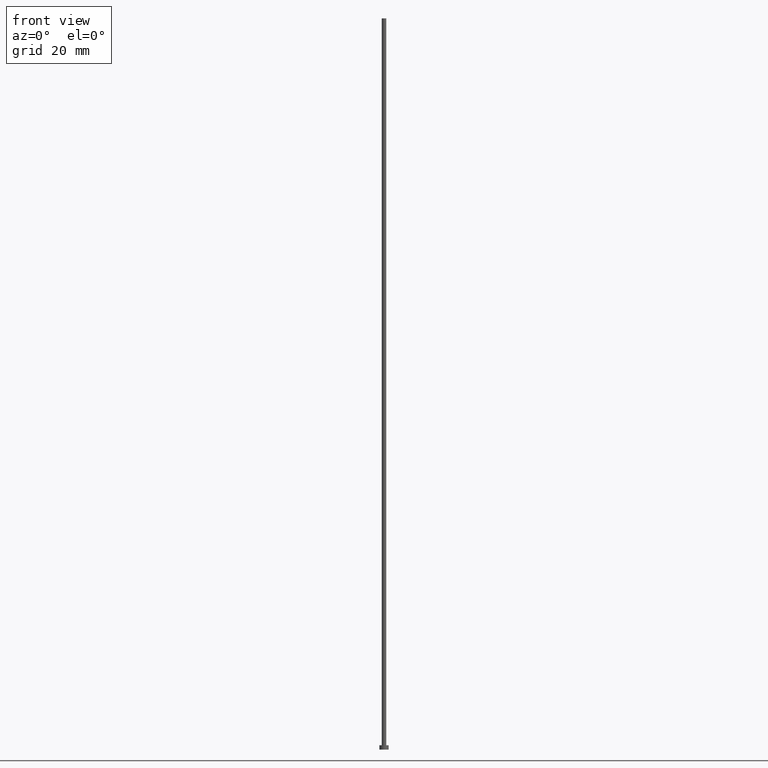
[diagram: clean part render]
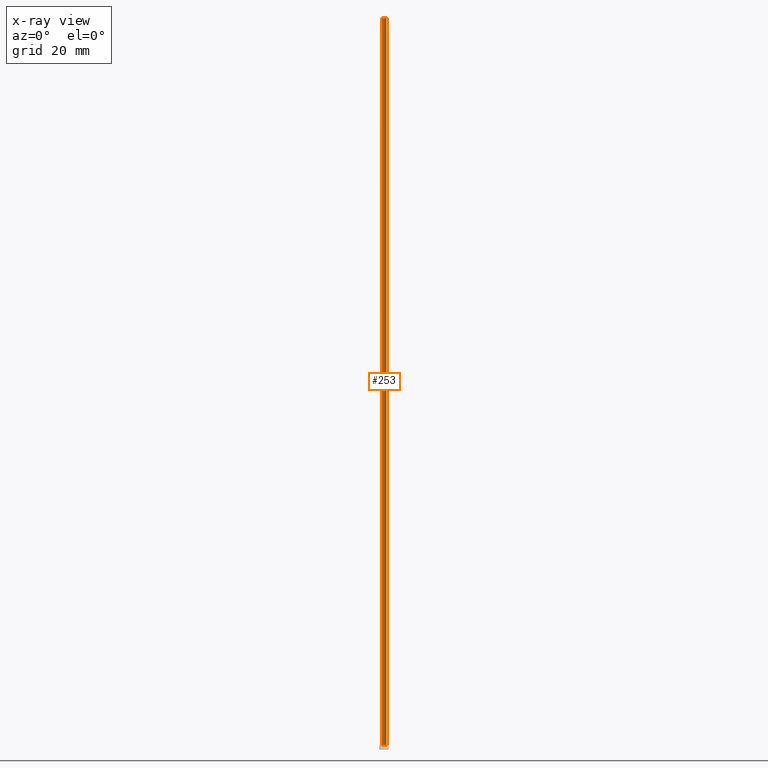
[diagram: x-ray — body ghosted, one internal face saturated and labeled with its STEP entity id]
A machine part, front view, then the same camera in x-ray: the body is ghosted and one INTERNAL B-rep face — a face not visible from any outside direction — is saturated and labeled: STEP entity #253.
In plain terms, the highlighted cylindrical surface (edge-blend (fillet) strip) has radius 0.6 mm, axis along (-0, -0, -1).
Its self-contained STEP definition (entity closure, byte-faithful):
#4 = EDGE_CURVE ( 'NONE', #101, #65, #147, .T. ) ;
#14 = DIRECTION ( 'NONE',  ( -0.000000000000000000, -0.000000000000000000, -1.000000000000000000 ) ) ;
#16 = CARTESIAN_POINT ( 'NONE',  ( 0.5999999999999999778, 7.347880794884117764E-17, 1.199999999999999956 ) ) ;
#17 = DIRECTION ( 'NONE',  ( -1.000000000000000000, 0.000000000000000000, 0.000000000000000000 ) ) ;
#19 = VECTOR ( 'NONE', #40, 1000.000000000000000 ) ;
#23 = EDGE_CURVE ( 'NONE', #83, #128, #242, .T. ) ;
#30 = CARTESIAN_POINT ( 'NONE',  ( -0.5999999999999999778, 0.000000000000000000, 1.199999999999999956 ) ) ;
#39 = AXIS2_PLACEMENT_3D ( 'NONE', #108, #124, #53 ) ;
#40 = DIRECTION ( 'NONE',  ( -0.000000000000000000, -0.000000000000000000, -1.000000000000000000 ) ) ;
#53 = DIRECTION ( 'NONE',  ( 1.000000000000000000, 0.000000000000000000, 0.000000000000000000 ) ) ;
#58 = ORIENTED_EDGE ( 'NONE', *, *, #4, .F. ) ;
#65 = VERTEX_POINT ( 'NONE', #30 ) ;
#80 = DIRECTION ( 'NONE',  ( 1.000000000000000000, 0.000000000000000000, 0.000000000000000000 ) ) ;
#83 = VERTEX_POINT ( 'NONE', #109 ) ;
#84 = CARTESIAN_POINT ( 'NONE',  ( 0.5999999999999999778, 7.347880794884117764E-17, 200.0000000000000000 ) ) ;
#101 = VERTEX_POINT ( 'NONE', #191 ) ;
#105 = VECTOR ( 'NONE', #14, 1000.000000000000000 ) ;
#108 = CARTESIAN_POINT ( 'NONE',  ( 0.000000000000000000, 0.000000000000000000, 1.199999999999999956 ) ) ;
#109 = CARTESIAN_POINT ( 'NONE',  ( 0.5999999999999999778, 7.347880794884117764E-17, 200.0000000000000000 ) ) ;
#119 = EDGE_LOOP ( 'NONE', ( #207, #194, #247, #58 ) ) ;
#124 = DIRECTION ( 'NONE',  ( 0.000000000000000000, 0.000000000000000000, 1.000000000000000000 ) ) ;
#128 = VERTEX_POINT ( 'NONE', #16 ) ;
#147 = LINE ( 'NONE', #214, #105 ) ;
#148 = AXIS2_PLACEMENT_3D ( 'NONE', #200, #168, #17 ) ;
#152 = EDGE_CURVE ( 'NONE', #128, #65, #255, .T. ) ;
#164 = CARTESIAN_POINT ( 'NONE',  ( 0.000000000000000000, 0.000000000000000000, 200.0000000000000000 ) ) ;
#168 = DIRECTION ( 'NONE',  ( -0.000000000000000000, -0.000000000000000000, -1.000000000000000000 ) ) ;
#191 = CARTESIAN_POINT ( 'NONE',  ( -0.5999999999999999778, 0.000000000000000000, 200.0000000000000000 ) ) ;
#193 = AXIS2_PLACEMENT_3D ( 'NONE', #164, #241, #80 ) ;
#194 = ORIENTED_EDGE ( 'NONE', *, *, #23, .T. ) ;
#200 = CARTESIAN_POINT ( 'NONE',  ( 0.000000000000000000, 0.000000000000000000, 200.0000000000000000 ) ) ;
#207 = ORIENTED_EDGE ( 'NONE', *, *, #217, .F. ) ;
#214 = CARTESIAN_POINT ( 'NONE',  ( -0.5999999999999999778, 0.000000000000000000, 200.0000000000000000 ) ) ;
#217 = EDGE_CURVE ( 'NONE', #83, #101, #252, .T. ) ;
#241 = DIRECTION ( 'NONE',  ( 0.000000000000000000, 0.000000000000000000, 1.000000000000000000 ) ) ;
#242 = LINE ( 'NONE', #84, #19 ) ;
#244 = FACE_OUTER_BOUND ( 'NONE', #119, .T. ) ;
#247 = ORIENTED_EDGE ( 'NONE', *, *, #152, .T. ) ;
#249 = CYLINDRICAL_SURFACE ( 'NONE', #148, 0.5999999999999999778 ) ;
#252 = CIRCLE ( 'NONE', #193, 0.5999999999999999778 ) ;
#253 = ADVANCED_FACE ( 'NONE', ( #244 ), #249, .T. ) ;
#255 = CIRCLE ( 'NONE', #39, 0.5999999999999999778 ) ;